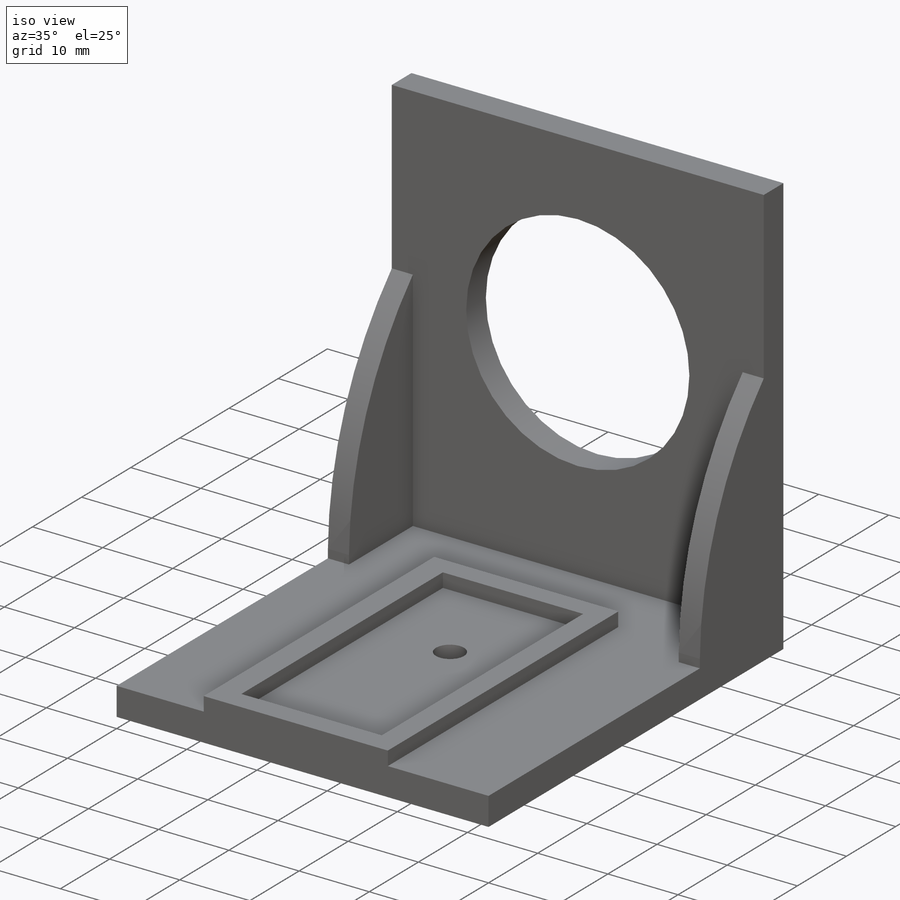
[diagram: iso view]
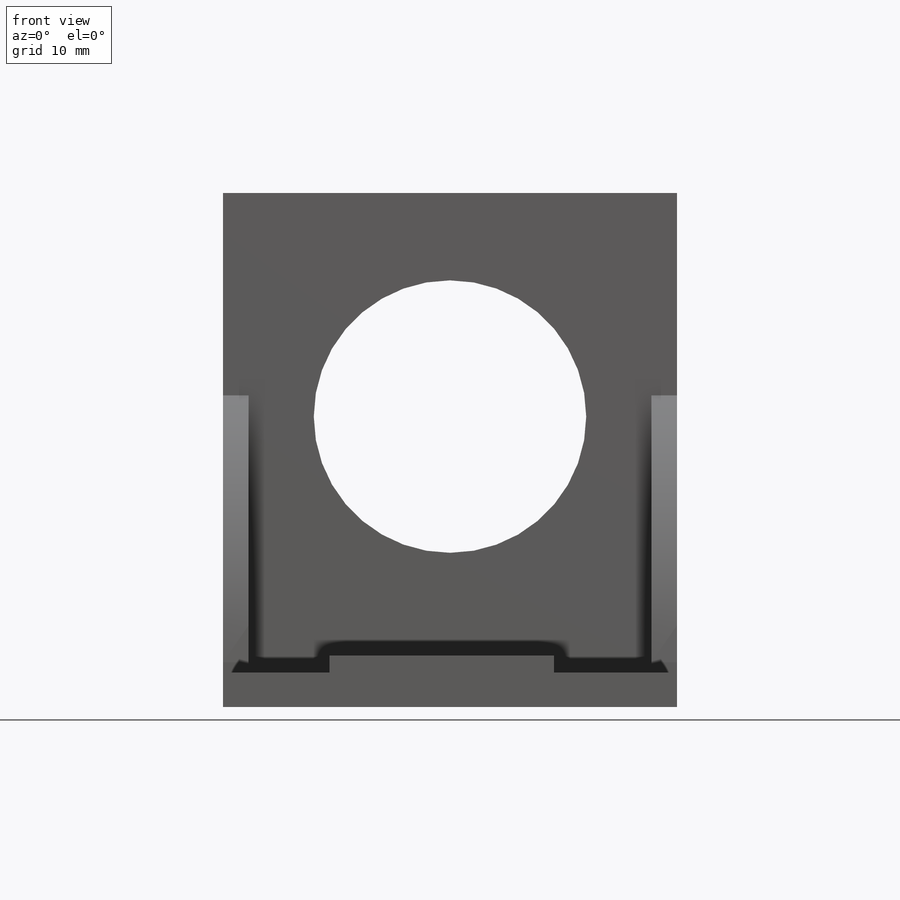
[diagram: front view]
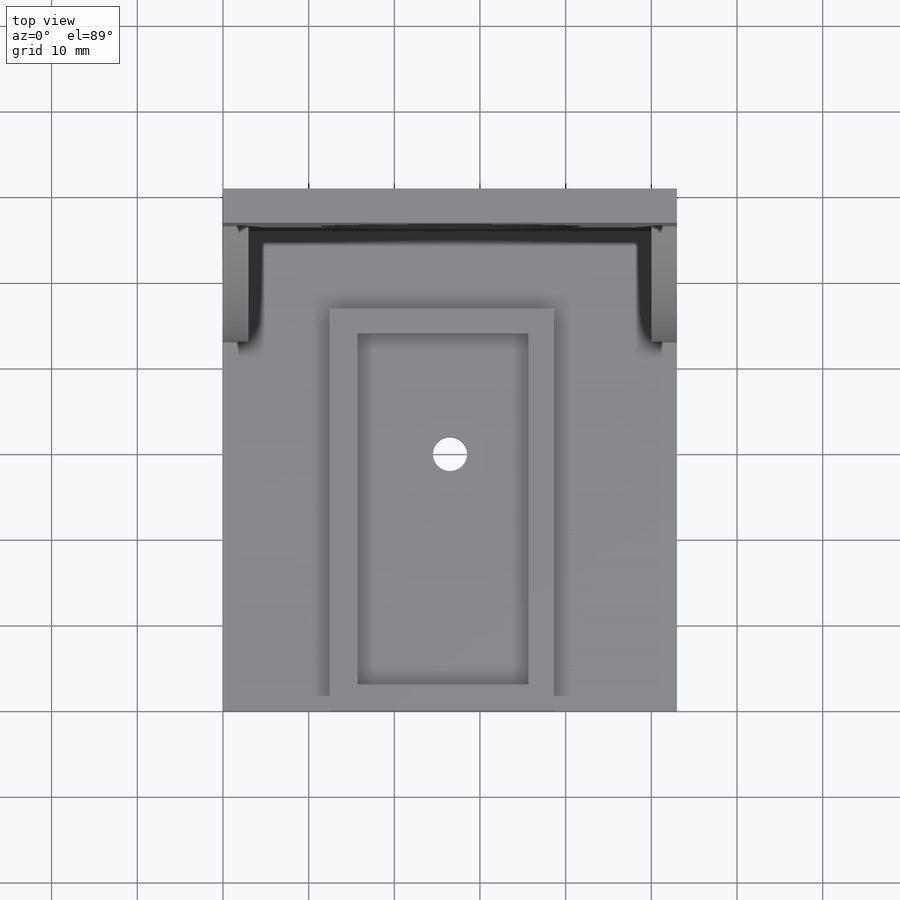
[diagram: top view]
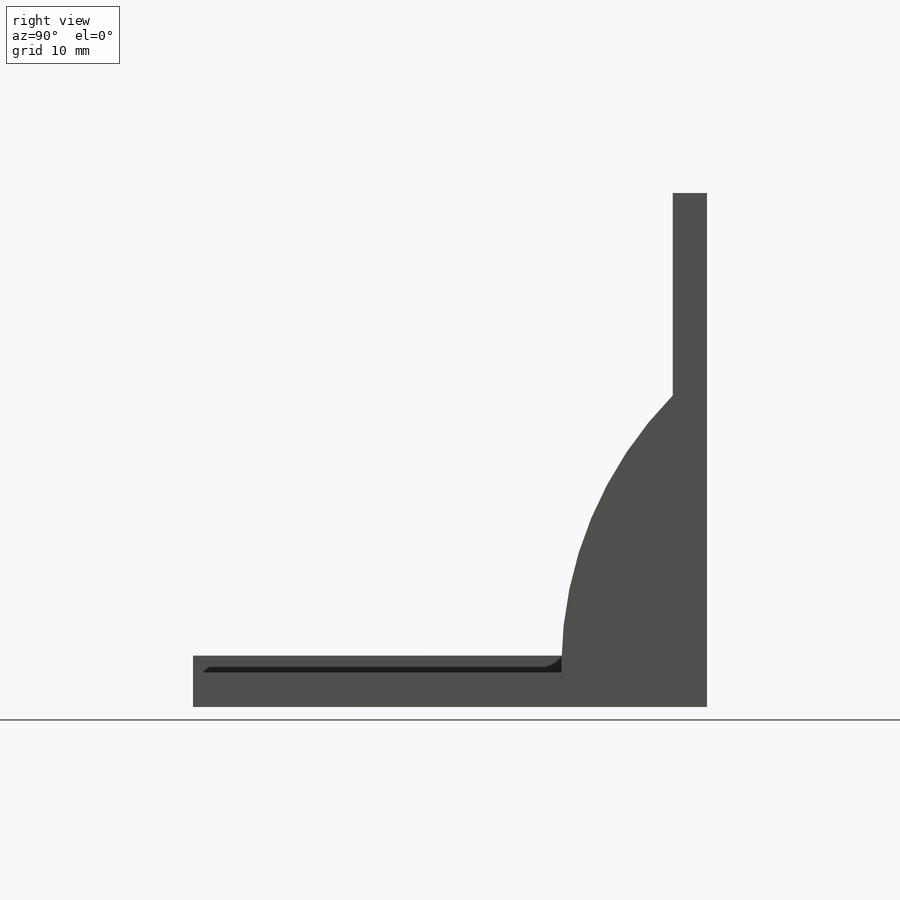
[diagram: right view]
SOLIDWORKS PART (.sldprt)
format: sldprt  version: not decoded by parser v0  size: 251,392 bytes
history: native  units: mm
features: sketch x7, extrude x4, plane x3, cut_extrude x3, material x1 (+10 scaffold rows collapsed)
feature tree (28):
  scaffold x10  (default folders/planes/origin — collapsed)
  material  "Material <não especificado>"
  plane  "Plano frontal"
  plane  "Plano superior"
  plane  "Plano direito"
  sketch  "Esboço1"  dims[D1=53.0mm D2=60.0mm]
  extrude  "Ressalto-extrusão1"  Depth=4mm
  sketch  "Esboço2"  dims[D1=4.0mm]
  extrude  "Ressalto-extrusão2"  Depth=60mm
  sketch  "Esboço5"  dims[D1=3.0mm D2=3.0mm]
  extrude  "Ressalto-extrusão3"  Depth=17mm
  sketch  "Esboço6"
  cut_extrude  "Corte-extrusão3"  Depth=62mm
  sketch  "Esboço7"  dims[D1=4.0mm D2=20.0mm D3=41.0mm D4=12.0mm]
  extrude  "Ressalto-extrusão4"  Depth=6mm
  sketch  "Esboço8"  dims[D1=4.0mm]
  cut_extrude  "Corte-extrusão4"  Depth=10mm
  sketch  "Esboço9"  dims[D2=31.8mm D1=33.9mm]
  cut_extrude  "Corte-extrusão6"  Depth=45mm
decode coverage: 13 of 14 modeling features carry decoded parameters
note: suppression state not decoded; provenance and decode notes live in map.json
